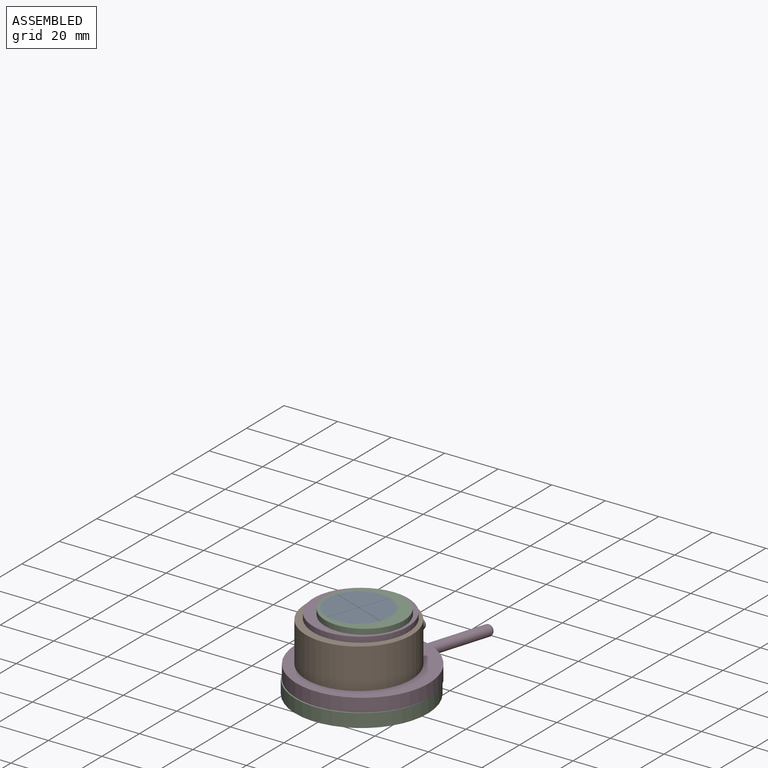
[diagram: assembled view]
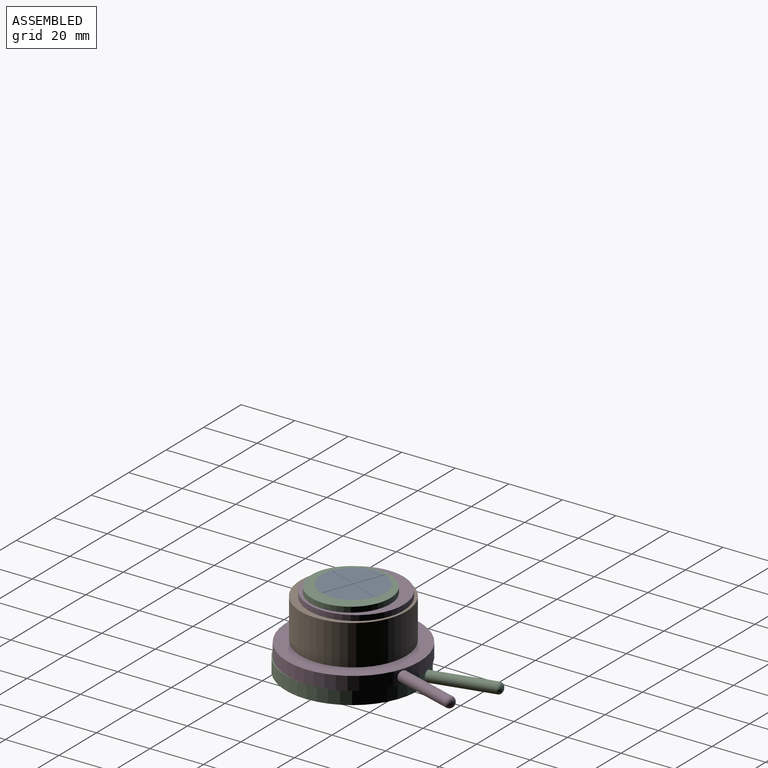
[diagram: assembled view, second angle]
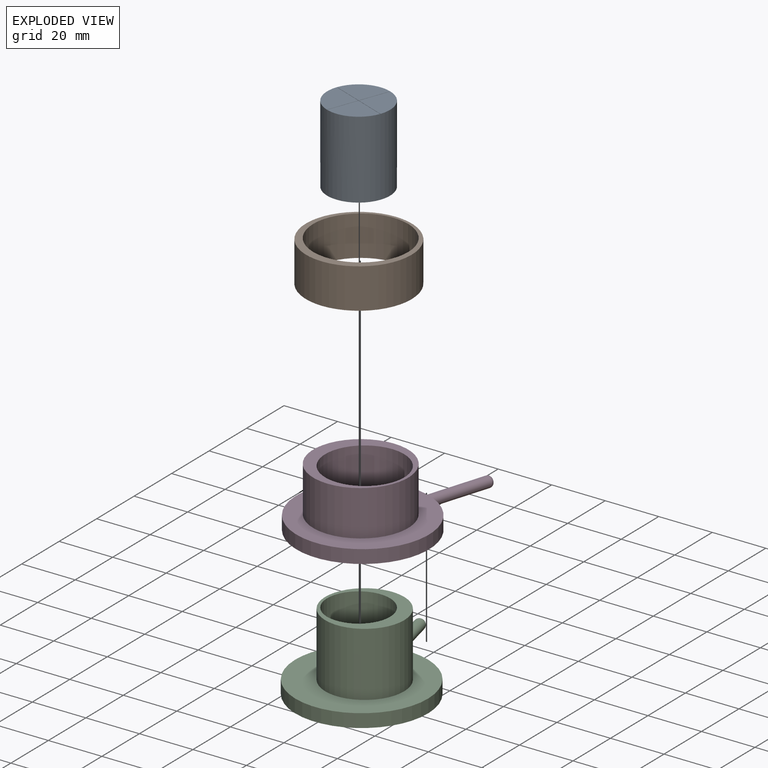
[diagram: exploded view]
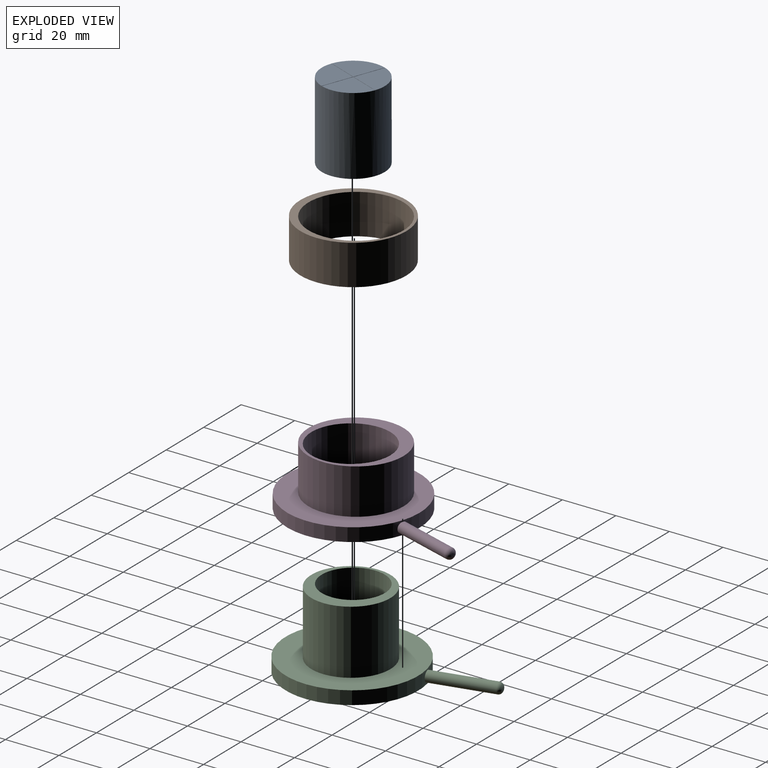
[diagram: exploded view, second angle]
ASSEMBLY  parts=4 mates=3
PART A: 15 faces, bbox 23.5x23.5x29 mm
  f0: cylinder r=11.75mm len=29mm, axis (0,0,1), area 2141mm2, adj f1,f2,f3,f4,f5,f6,f7,f8
  f1: plane 11.7x11.7mm, normal (0,0,1), area 107.3mm2, adj f0,f9,f10
  f2: plane 11.7x11.7mm, normal (0,0,1), area 107.3mm2, adj f0,f7,f8
  f3: plane 11.7x11.7mm, normal (0,0,1), area 107.3mm2, adj f0,f6,f13
  f4: plane 23.5x23.5mm, normal (0,0,-1), area 433.7mm2, adj f0
  f5: plane 11.7x11.7mm, normal (0,0,1), area 107.3mm2, adj f0,f11,f12
  f6: plane 11.7x0.1mm, normal (0,-1,0), area 1.2mm2, adj f0,f3,f13,f14
  f7: plane 11.7x0.1mm, normal (0,1,0), area 1.2mm2, adj f0,f2,f8,f14
  f8: plane 11.7x0.1mm, normal (1,0,0), area 1.2mm2, adj f0,f2,f7,f14
  f9: plane 11.7x0.1mm, normal (-1,0,0), area 1.2mm2, adj f0,f1,f10,f14
  f10: plane 11.7x0.1mm, normal (0,1,0), area 1.2mm2, adj f0,f1,f9,f14
  f11: plane 11.7x0.1mm, normal (0,-1,0), area 1.2mm2, adj f0,f5,f12,f14
  f12: plane 11.7x0.1mm, normal (-1,0,0), area 1.2mm2, adj f0,f5,f11,f14
  f13: plane 11.7x0.1mm, normal (1,0,0), area 1.2mm2, adj f0,f3,f6,f14
  f14: plane 23.5x23.5mm, normal (0,0,1), area 4.7mm2, adj f0,f6,f7,f8,f9,f10,f11,f12
PART B: 4 faces, bbox 39.5x39.5x15 mm
  f0: cylinder r=17.75mm len=35.5mm, axis (0,0,-1), area 1672.9mm2, adj f2,f3
  f1: cylinder r=19.75mm len=39.5mm, axis (0,0,-1), area 1861.4mm2, adj f2,f3
  f2: plane 39.5x39.5mm, normal (0,0,1), area 235.6mm2, adj f0,f1
  f3: plane 39.5x39.5mm, normal (0,0,-1), area 235.6mm2, adj f0,f1
PART C: 9 faces, bbox 74.5x49.5x29 mm
  f0: cylinder r=11.75mm len=29mm, axis (0,0,-1), area 2141mm2, adj f2,f4
  f1: cylinder r=14.75mm len=29.5mm, axis (0,0,-1), area 2224.2mm2, adj f2,f5
  f2: plane 29.5x29.5mm, normal (0,0,1), area 249.8mm2, adj f0,f1
  f3: cylinder r=24.75mm len=49.5mm, axis (0,0,1), area 764.9mm2, adj f4,f5,f6
  f4: plane 49.5x49.5mm, normal (0,0,-1), area 1490.7mm2, adj f0,f3
  f5: plane 49.5x49.5mm, normal (0,0,1), area 1240.9mm2, adj f1,f3
  f6: cylinder r=2mm len=23.58mm, axis (-1,0,0), area 295.8mm2, adj f3,f8
  f7: plane 1x1mm, normal (1,0,0), area 0.8mm2, adj f8
  f8: torus R=0.5mm, axis (1,0,0), area 21.5mm2, adj f6,f7
PART D: 9 faces, bbox 74.5x49.5x22 mm
  f0: cylinder r=14.75mm len=29.5mm, axis (0,0,-1), area 2038.9mm2, adj f2,f4
  f1: cylinder r=17.75mm len=35.5mm, axis (0,0,-1), area 1896mm2, adj f2,f5
  f2: plane 35.5x35.5mm, normal (0,0,1), area 306.3mm2, adj f0,f1
  f3: cylinder r=24.75mm len=49.5mm, axis (0,0,1), area 765mm2, adj f4,f5,f6
  f4: plane 49.5x49.5mm, normal (0,0,-1), area 1240.9mm2, adj f0,f3
  f5: plane 49.5x49.5mm, normal (0,0,1), area 934.6mm2, adj f1,f3
  f6: cylinder r=2mm len=23.58mm, axis (-1,0,0), area 295.8mm2, adj f3,f8
  f7: plane 1x1mm, normal (1,0,0), area 0.8mm2, adj f8
  f8: torus R=0.5mm, axis (1,0,0), area 21.5mm2, adj f6,f7
PLACE A rot(axis=(0,0,-1),20.6deg) t=(-0.39,-1,-7.5)mm
PLACE B t=(0,0,-7.5)mm
PLACE C rot(axis=(0,0,1),103.5deg) t=(0.94,0.17,-7.5)mm
PLACE D rot(axis=(0,0,1),72.6deg) t=(0.95,0.7,-7.5)mm
MATE revolute B.f0 <-> D.f1  axis (0,0,-1) through (0,1,-7.5)mm
MATE revolute A.f0 <-> C.f0  axis (0,0,-1) through (-0.04,-0.07,-17.5)mm
MATE revolute D.f0 <-> C.f1  axis (0,0,-1) through (1.91,0.4,-12.5)mm
